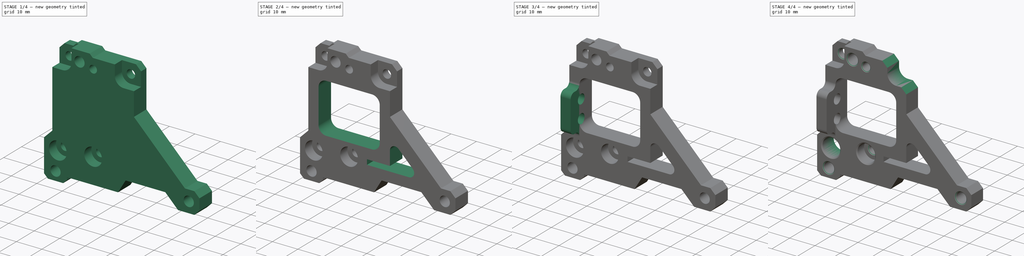
[diagram: build sequence overview — one tinted view per stage of 4, left to right]
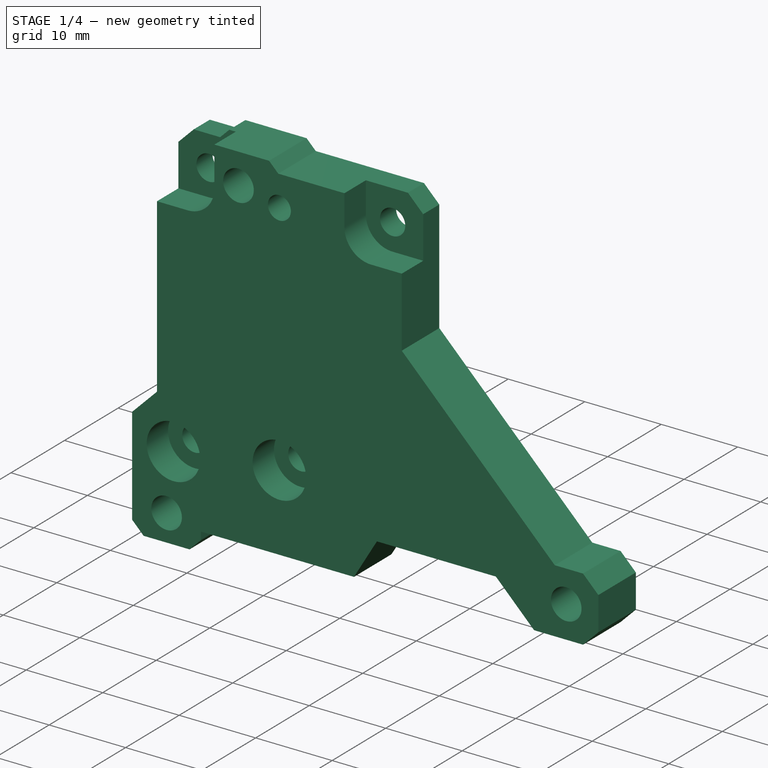
[diagram: stage 1 of 4 — iso view after this stage's code; geometry added in this stage tinted green]
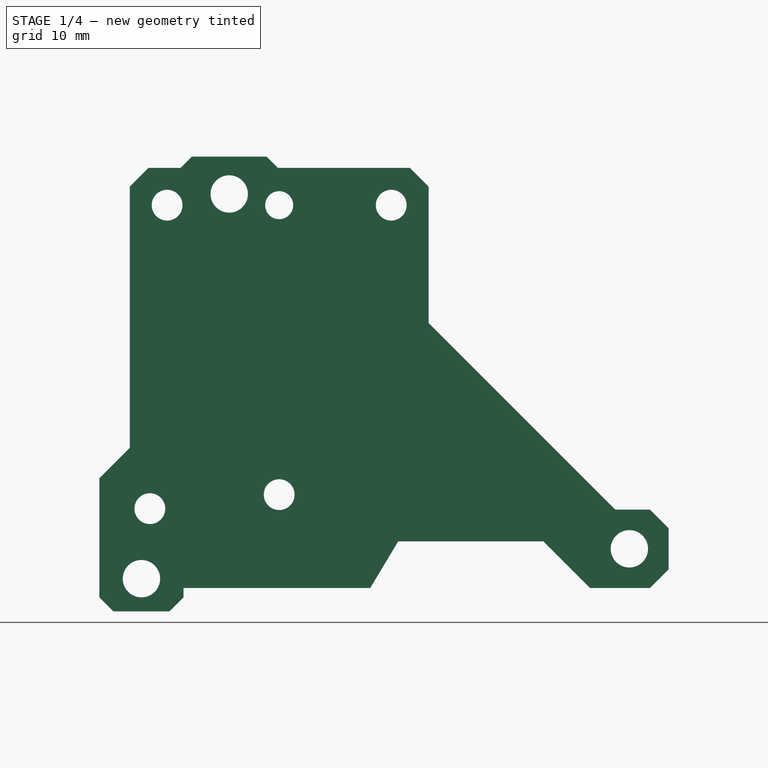
[diagram: stage 1 of 4 — front view after this stage's code; geometry added in this stage tinted green]
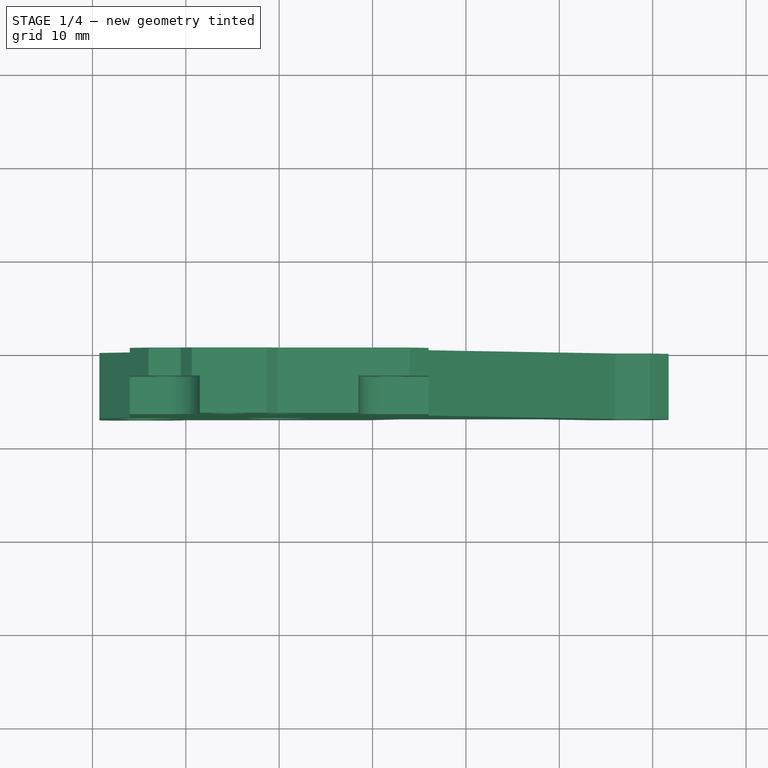
[diagram: stage 1 of 4 — top view after this stage's code; geometry added in this stage tinted green]
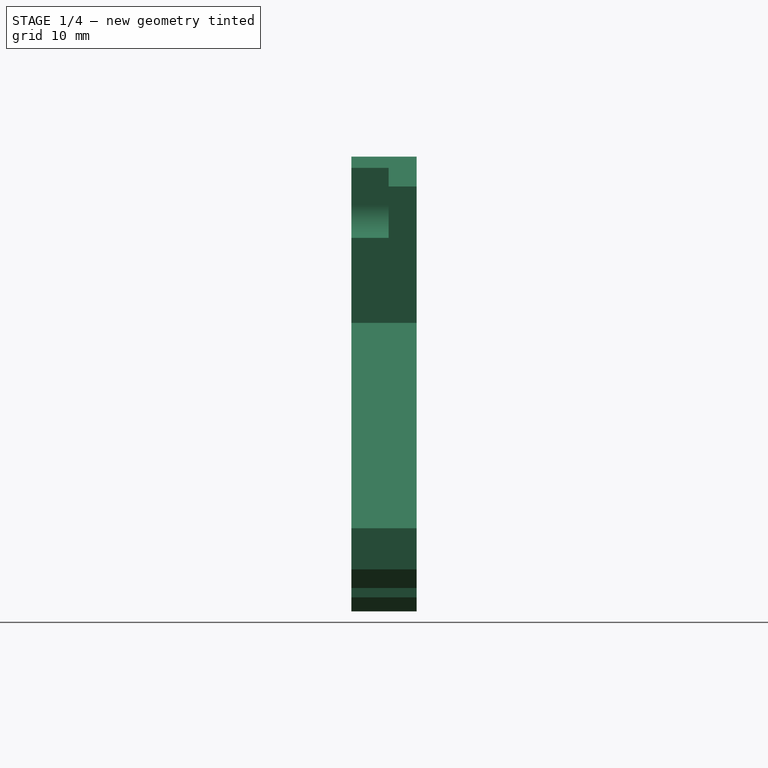
[diagram: stage 1 of 4 — right view after this stage's code; geometry added in this stage tinted green]
FCSTD DOCUMENT  (FreeCAD 0.19R24366 (Git))
Label: mounter-plate
License: All rights reserved
LicenseURL: http://en.wikipedia.org/wiki/All_rights_reserved
objects: Sketcher::SketchObject×5, PartDesign::Pocket×5, PartDesign::Chamfer×4, PartDesign::Fillet×3, PartDesign::Pad×2, PartDesign::Body×1
note: 34 computed .brp shape members not serialized (recipe doc carries the construction recipe); baked Part::Feature solids carry a one-line shape summary decoded from their .brp

FEATURE [Sketcher::SketchObject] Sketch031
  FullyConstrained = true
  MapMode = 5
  Placement = pos=(0,0,0) rot=(1,0,0;1.5708rad)
  Support = -> [XZ_Plane018]
  sketch-geometry (29):
    g0: Circle CenterX=-14.75 CenterY=-4 CenterZ=0 NormalX=0 NormalY=0 NormalZ=1 AngleXU=0 Radius=2
    g1: Circle CenterX=-5.35 CenterY=37.2 CenterZ=0 NormalX=0 NormalY=0 NormalZ=1 AngleXU=0 Radius=2
    g2: Circle CenterX=37.5 CenterY=-0.8 CenterZ=0 NormalX=0 NormalY=0 NormalZ=1 AngleXU=0 Radius=2
    g3: Circle CenterX=0 CenterY=5 CenterZ=0 NormalX=0 NormalY=0 NormalZ=1 AngleXU=0 Radius=1.65
    g4: Circle CenterX=-12 CenterY=36 CenterZ=0 NormalX=0 NormalY=0 NormalZ=1 AngleXU=0 Radius=1.65
    g5: Circle CenterX=12 CenterY=36 CenterZ=0 NormalX=0 NormalY=0 NormalZ=1 AngleXU=0 Radius=1.65
    g6: LineSegment StartX=-19.25 StartY=0 StartZ=0 EndX=-19.25 EndY=-6 EndZ=0
    g7: LineSegment StartX=-19.25 StartY=-6 StartZ=0 EndX=-17.75 EndY=-7.5 EndZ=0
    g8: LineSegment StartX=-17.75 StartY=-7.5 StartZ=0 EndX=-11.75 EndY=-7.5 EndZ=0
    g9: LineSegment StartX=-11.75 StartY=-7.5 StartZ=0 EndX=-10.25 EndY=-6 EndZ=0
    g10: LineSegment StartX=-10.25 StartY=-6 StartZ=0 EndX=-10.25 EndY=-5 EndZ=0
    g11: LineSegment StartX=-10.25 StartY=-5 StartZ=0 EndX=9.75 EndY=-5 EndZ=0
    g12: LineSegment StartX=9.75 StartY=-5 StartZ=0 EndX=12.75 EndY=0 EndZ=0
    g13: LineSegment StartX=-16 StartY=10 StartZ=0 EndX=-16 EndY=40 EndZ=0
    g14: LineSegment StartX=-16 StartY=40 StartZ=0 EndX=-10.55 EndY=40 EndZ=0
    g15: LineSegment StartX=-10.55 StartY=40 StartZ=0 EndX=-9.35 EndY=41.2 EndZ=0
    g16: LineSegment StartX=-9.35 StartY=41.2 StartZ=0 EndX=-1.35 EndY=41.2 EndZ=0
    g17: LineSegment StartX=-1.35 StartY=41.2 StartZ=0 EndX=-0.15 EndY=40 EndZ=0
    g18: LineSegment StartX=-0.15 StartY=40 StartZ=0 EndX=16 EndY=40 EndZ=0
    g19: LineSegment StartX=16 StartY=40 StartZ=0 EndX=16 EndY=3.4 EndZ=0
    g20: LineSegment StartX=16 StartY=3.4 StartZ=0 EndX=41.7 EndY=3.4 EndZ=0
    g21: LineSegment StartX=41.7 StartY=3.4 StartZ=0 EndX=41.7 EndY=-5 EndZ=0
    g22: LineSegment StartX=41.7 StartY=-5 StartZ=0 EndX=33.3 EndY=-5 EndZ=0
    g23: LineSegment StartX=33.3 StartY=-5 StartZ=0 EndX=28.3 EndY=0 EndZ=0
    g24: LineSegment StartX=28.3 StartY=0 StartZ=0 EndX=12.75 EndY=0 EndZ=0
    g25: Circle CenterX=0 CenterY=36 CenterZ=0 NormalX=0 NormalY=0 NormalZ=1 AngleXU=0 Radius=1.5
    g26: LineSegment StartX=-19.25 StartY=0 StartZ=0 EndX=-19.25 EndY=6.75 EndZ=0
    g27: LineSegment StartX=-19.25 StartY=6.75 StartZ=0 EndX=-16 EndY=10 EndZ=0
    g28: Circle CenterX=-13.85 CenterY=3.5 CenterZ=0 NormalX=0 NormalY=0 NormalZ=1 AngleXU=0 Radius=1.65
  constraints (87):
    c: Equal(g0,g2)
    c: Equal(g2,g1)
    c: Radius(g1) = 2
    c: DistanceX(g1,g-1) = 5.35
    c: DistanceX(g0,g-1) = 14.75
    c: DistanceX(g-1,g2) = 37.5
    c: DistanceY(g-1,g1) = 37.2
    c: DistanceY(g0,g-1) = 4
    c: DistanceY(g2,g-1) = 0.8
    c: PointOnObject(g3,g-2)
    c: Horizontal(g5,g4)
    c: Equal(g4,g5)
    c: Equal(g5,g3)
    c: DistanceY(g-1,g3) = 5
    c: DistanceY(g-1,g4) = 36
    c: DistanceX(g4,g-1) = 12
    c: DistanceX(g-1,g5) = 12
    c: Radius(g4) = 1.65
    c: PointOnObject(g6,g-1)
    c: Vertical(g6)
    c: Coincident(g6,g7)
    c: Coincident(g7,g8)
    c: Horizontal(g8)
    c: Coincident(g8,g9)
    c: Coincident(g9,g10)
    c: Vertical(g10)
    c: Coincident(g10,g11)
    c: Horizontal(g11)
    c: Coincident(g11,g12)
    c: PointOnObject(g12,g-1)
    c: DistanceX(g-1,g12) = 12.75
    c: DistanceX(g11,g12) = 3
    c: DistanceY(g11,g-1) = 5
    c: DistanceX(g6,g-1) = 19.25
    c: DistanceY(g6,g6) = 6
    c: DistanceY(g7,g6) = 1.5
    c: DistanceX(g6,g7) = 1.5
    c: DistanceX(g8,g9) = 1.5
    c: DistanceX(g8,g8) = 6
    c: Horizontal(g9,g6)
    c: Vertical(g13)
    c: Coincident(g13,g14)
    c: Horizontal(g14)
    c: Coincident(g14,g15)
    c: Coincident(g15,g16)
    c: Horizontal(g16)
    c: Coincident(g16,g17)
    c: Coincident(g17,g18)
    c: Horizontal(g18)
    c: Coincident(g18,g19)
    c: Vertical(g19)
    c: Coincident(g19,g20)
    c: Horizontal(g20)
    c: Coincident(g20,g21)
    c: Vertical(g21)
    c: Coincident(g21,g22)
    c: Horizontal(g22)
    c: Coincident(g22,g23)
    c: PointOnObject(g23,g-1)
    c: Coincident(g23,g24)
    c: Coincident(g24,g12)
    c: DistanceY(g1,g15) = 4
    c: DistanceY(g4,g13) = 4
    c: Horizontal(g17,g14)
    c: DistanceX(g13,g4) = 4
    c: DistanceX(g5,g18) = 4
    c: DistanceX(g15,g1) = 4
    c: DistanceX(g1,g16) = 4
    c: DistanceX(g14,g15) = 1.2
    c: DistanceX(g16,g17) = 1.2
    c: Horizontal(g11,g22)
    c: DistanceX(g2,g21) = 4.2
    c: DistanceY(g2,g20) = 4.2
    c: DistanceX(g22,g2) = 4.2
    c: DistanceX(g23,g22) = 5
    c: PointOnObject(g25,g-2)
    c: DistanceY(g-1,g25) = 36
    c: Radius(g25) = 1.5
    c: Coincident(g6,g26)
    c: Vertical(g26)
    c: Coincident(g26,g27)
    c: Coincident(g27,g13)
    c: DistanceY(g26,g13) = 3.25
    c: Radius(g28) = 1.65
    c: DistanceX(g28,g-1) = 13.85
    c: DistanceY(g-1,g28) = 3.5
    c: DistanceY(g28,g26) = 3.25
FEATURE [PartDesign::Pad] Pad006
  Direction = (1,1,1)
  Length = 7
  Length2 = 100
  Placement = pos=(0,0,0) rot=(1,0,0;1.5708rad)
  Profile = -> Sketch031
  Type = 0
FEATURE [PartDesign::Chamfer] Chamfer008
  Angle = 45
  Base = -> Pad006 [Edge35]
  BaseFeature = -> Pad006
  ChamferType = 0
  FlipDirection = false
  Placement = pos=(0,0,0) rot=(1,0,0;1.5708rad)
  Size = 20
  Size2 = 1
  SupportTransform = false
FEATURE [PartDesign::Chamfer] Chamfer009
  Angle = 45
  Base = -> Chamfer008 [Edge75,Edge65,Edge3,Edge36]
  BaseFeature = -> Chamfer008
  ChamferType = 0
  FlipDirection = false
  Placement = pos=(0,0,0) rot=(1,0,0;1.5708rad)
  Size = 2
  Size2 = 1
  SupportTransform = false
FEATURE [Sketcher::SketchObject] Sketch036
  ExternalGeometry = -> [Chamfer009]
  FullyConstrained = true
  MapMode = 5
  Placement = pos=(0,-7,1.5e-15) rot=(1,0,0;1.5708rad)
  Support = -> [Chamfer009]
  sketch-geometry (12):
    g0: Circle CenterX=-13.85 CenterY=3.5 CenterZ=0 NormalX=0 NormalY=0 NormalZ=1 AngleXU=0 Radius=3.5
    g1: Circle CenterX=0 CenterY=5 CenterZ=0 NormalX=0 NormalY=0 NormalZ=1 AngleXU=0 Radius=3.5
    g2: ArcOfCircle CenterX=-12 CenterY=36 CenterZ=0 NormalX=0 NormalY=0 NormalZ=1 AngleXU=0 Radius=3.5 StartAngle=4.71239 EndAngle=6.28319
    g3: ArcOfCircle CenterX=12 CenterY=36 CenterZ=0 NormalX=0 NormalY=0 NormalZ=1 AngleXU=0 Radius=3.5 StartAngle=3.14159 EndAngle=4.71239
    g4: LineSegment StartX=-8.5 StartY=36 StartZ=0 EndX=-8.5 EndY=42 EndZ=0
    g5: LineSegment StartX=-8.5 StartY=42 StartZ=0 EndX=-18 EndY=42 EndZ=0
    g6: LineSegment StartX=-18 StartY=42 StartZ=0 EndX=-18 EndY=32.5 EndZ=0
    g7: LineSegment StartX=-18 StartY=32.5 StartZ=0 EndX=-12 EndY=32.5 EndZ=0
    g8: LineSegment StartX=12 StartY=32.5 StartZ=0 EndX=18 EndY=32.5 EndZ=0
    g9: LineSegment StartX=18 StartY=32.5 StartZ=0 EndX=18 EndY=42 EndZ=0
    g10: LineSegment StartX=18 StartY=42 StartZ=0 EndX=8.5 EndY=42 EndZ=0
    g11: LineSegment StartX=8.5 StartY=42 StartZ=0 EndX=8.5 EndY=36 EndZ=0
  constraints (32):
    c: Coincident(g0,g-3)
    c: Coincident(g1,g-4)
    c: Coincident(g2,g-5)
    c: Coincident(g3,g-6)
    c: Horizontal(g2,g2)
    c: Horizontal(g2,g3)
    c: Vertical(g2,g2)
    c: Vertical(g3,g3)
    c: Equal(g3,g2)
    c: Equal(g2,g1)
    c: Equal(g1,g0)
    c: Radius(g1) = 3.5
    c: Tangent(g2,g4) = -1.5708
    c: Coincident(g4,g5)
    c: Horizontal(g5)
    c: Coincident(g5,g6)
    c: Vertical(g6)
    c: Coincident(g6,g7)
    c: Coincident(g7,g2)
    c: Horizontal(g7)
    c: Tangent(g3,g8) = -1.5708
    c: Coincident(g8,g9)
    c: Vertical(g9)
    c: Coincident(g9,g10)
    c: Horizontal(g10)
    c: Coincident(g10,g11)
    c: Coincident(g11,g3)
    c: Vertical(g11)
    c: Horizontal(g10,g4)
    c: DistanceY(g4,g4) = 6
    c: DistanceX(g7,g7) = 6
    c: DistanceX(g8,g8) = 6
FEATURE [PartDesign::Pocket] Pocket022
  BaseFeature = -> Chamfer009
  Length = 4
  Length2 = 100
  Placement = pos=(0,0,0) rot=(1,0,0;1.5708rad)
  Profile = -> Sketch036
  Type = 0
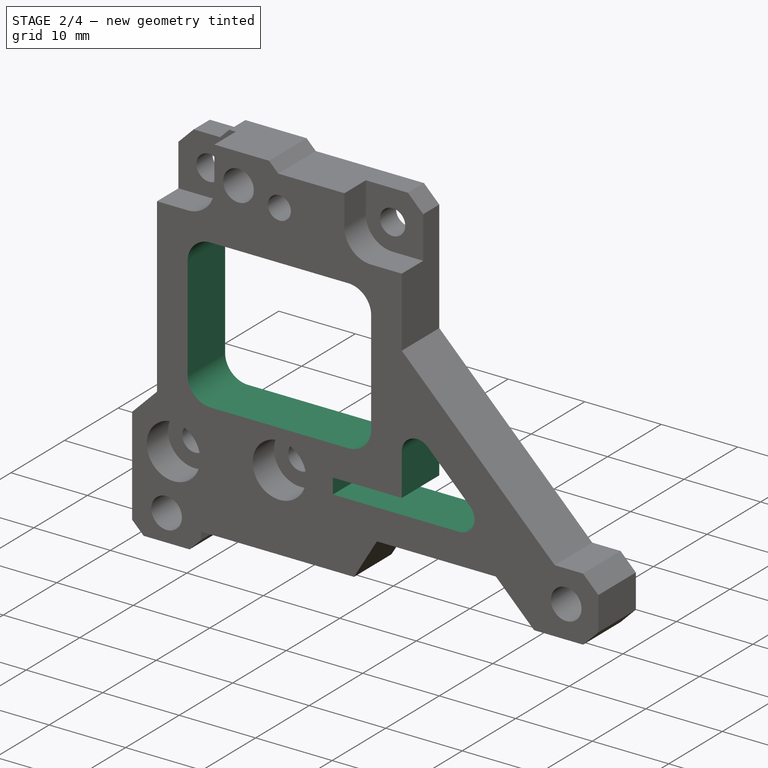
[diagram: stage 2 of 4 — iso view after this stage's code; geometry added in this stage tinted green]
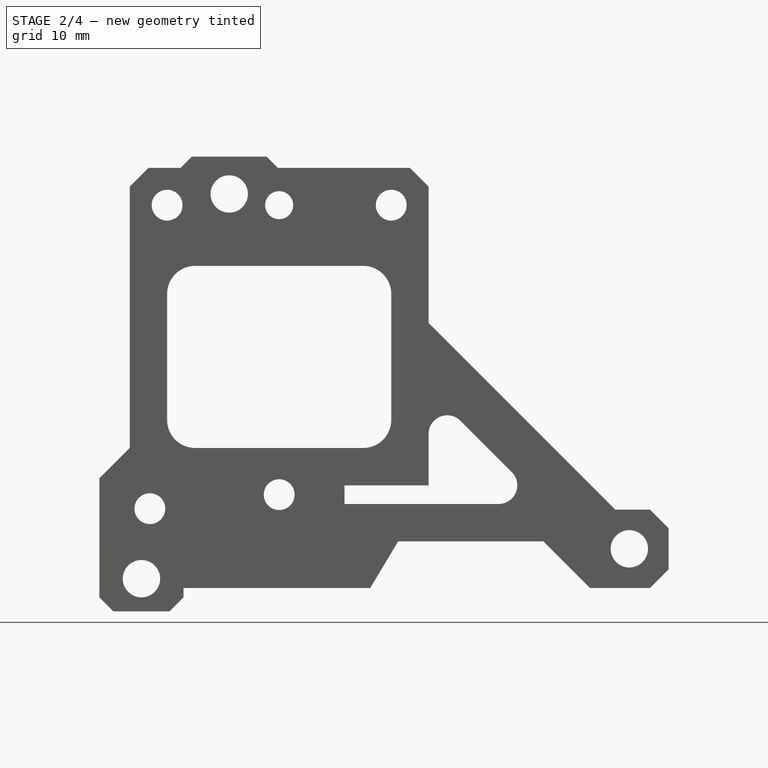
[diagram: stage 2 of 4 — front view after this stage's code; geometry added in this stage tinted green]
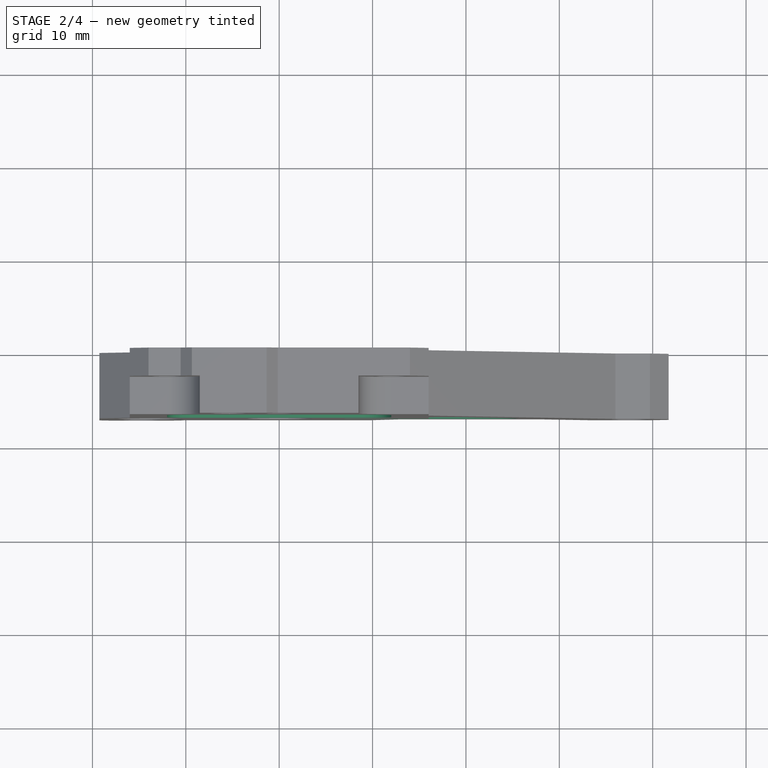
[diagram: stage 2 of 4 — top view after this stage's code; geometry added in this stage tinted green]
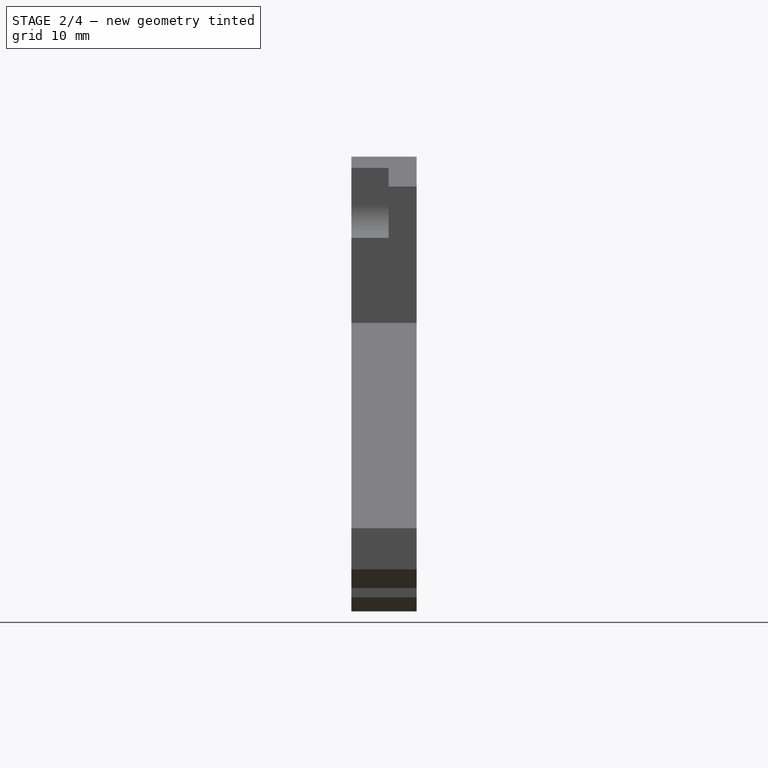
[diagram: stage 2 of 4 — right view after this stage's code; geometry added in this stage tinted green]
FEATURE [Sketcher::SketchObject] Sketch037
  ExternalGeometry = -> [Pocket022]
  FullyConstrained = true
  MapMode = 5
  Placement = pos=(0,-7,1.5e-15) rot=(1,0,0;1.5708rad)
  Support = -> [Pocket022]
  sketch-geometry (10):
    g0: LineSegment StartX=-12 StartY=29.5 StartZ=0 EndX=12 EndY=29.5 EndZ=0
    g1: LineSegment StartX=12 StartY=29.5 StartZ=0 EndX=12 EndY=10 EndZ=0
    g2: LineSegment StartX=12 StartY=10 StartZ=0 EndX=-12 EndY=10 EndZ=0
    g3: LineSegment StartX=-12 StartY=10 StartZ=0 EndX=-12 EndY=29.5 EndZ=0
    g4: LineSegment StartX=7 StartY=6 StartZ=0 EndX=16 EndY=6 EndZ=0
    g5: LineSegment StartX=16 StartY=6 StartZ=0 EndX=16 EndY=16.3289 EndZ=0
    g6: LineSegment StartX=16 StartY=16.3289 StartZ=0 EndX=28.3289 EndY=4 EndZ=0
    g7: LineSegment StartX=28.3289 StartY=4 StartZ=0 EndX=7 EndY=4 EndZ=0
    g8: LineSegment StartX=7 StartY=4 StartZ=0 EndX=7 EndY=6 EndZ=0
    g9: LineSegment StartX=28.3289 StartY=4 StartZ=0 EndX=31.8645 EndY=7.53553 EndZ=0
  constraints (30):
    c: Coincident(g0,g1)
    c: Coincident(g1,g2)
    c: Coincident(g2,g3)
    c: Coincident(g3,g0)
    c: Horizontal(g0)
    c: Horizontal(g2)
    c: Vertical(g1)
    c: Vertical(g3)
    c: DistanceX(g-4,g2) = 4
    c: DistanceX(g0,g-5) = 4
    c: DistanceY(g0,g-5) = 3
    c: Horizontal(g-4,g2)
    c: Horizontal(g4)
    c: Coincident(g4,g5)
    c: Vertical(g5)
    c: Coincident(g5,g6)
    c: Coincident(g6,g7)
    c: Horizontal(g7)
    c: Coincident(g7,g8)
    c: Coincident(g8,g4)
    c: Vertical(g8)
    c: Parallel(g-6,g6)
    c: Vertical(g5,g-6)
    c: Coincident(g9,g6)
    c: PointOnObject(g9,g-6)
    c: Perpendicular(g-6,g9)
    c: Distance(g9) = 5
    c: DistanceY(g4,g1) = 4
    c: DistanceY(g-1,g7) = 4
    c: DistanceX(g-1,g7) = 7
FEATURE [PartDesign::Pocket] Pocket023
  BaseFeature = -> Pocket022
  Length = 5
  Length2 = 100
  Placement = pos=(0,0,0) rot=(1,0,0;1.5708rad)
  Profile = -> Sketch037
  Type = 1
FEATURE [PartDesign::Fillet] Fillet001
  Base = -> Pocket023 [Edge130,Edge129,Edge132,Edge131]
  BaseFeature = -> Pocket023
  Placement = pos=(0,0,0) rot=(1,0,0;1.5708rad)
  Radius = 3
  SupportTransform = false
FEATURE [PartDesign::Fillet] Fillet002
  Base = -> Fillet001 [Edge144,Edge142]
  BaseFeature = -> Fillet001
  Placement = pos=(0,0,0) rot=(1,0,0;1.5708rad)
  Radius = 2
  SupportTransform = false
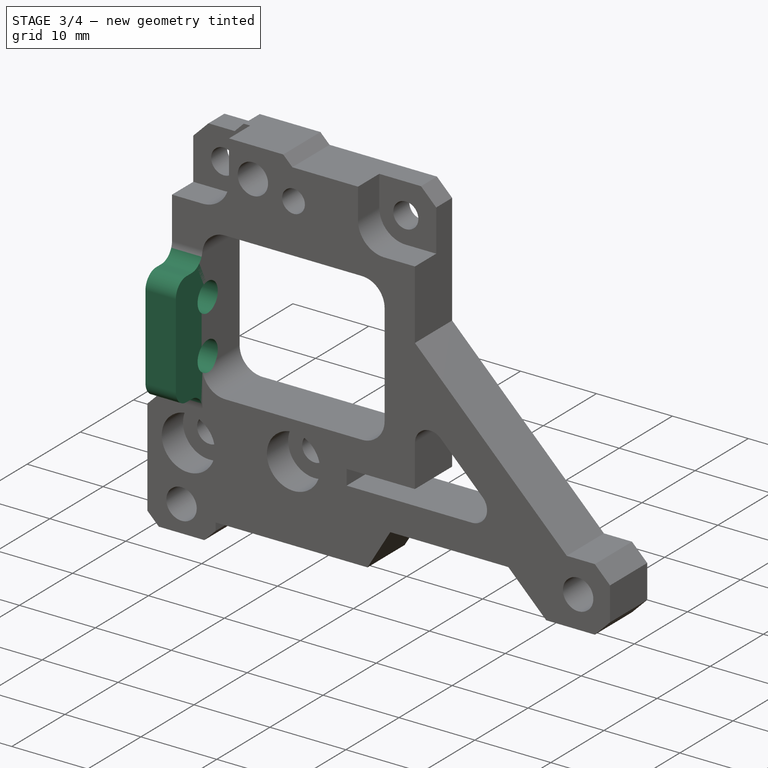
[diagram: stage 3 of 4 — iso view after this stage's code; geometry added in this stage tinted green]
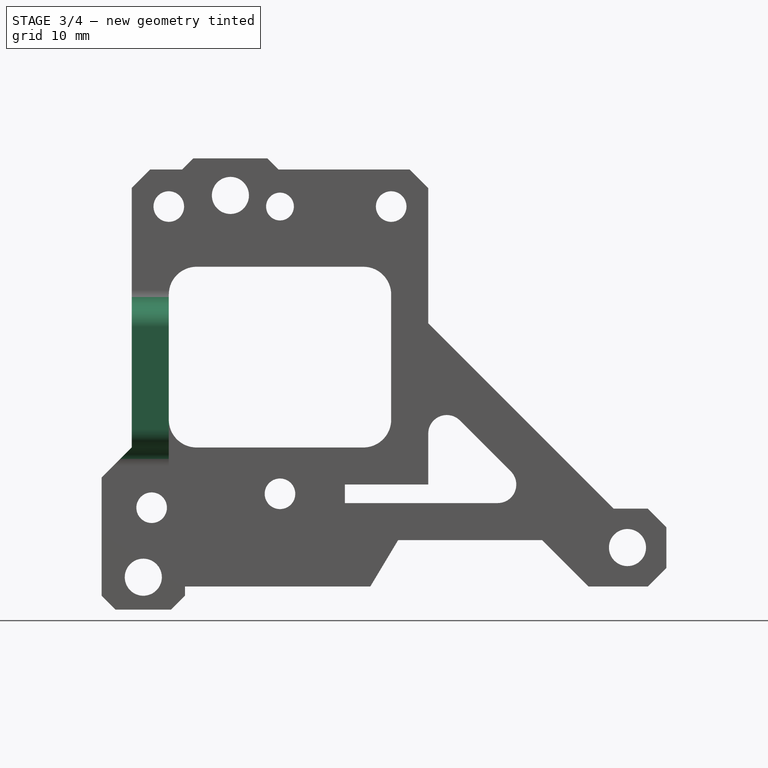
[diagram: stage 3 of 4 — front view after this stage's code; geometry added in this stage tinted green]
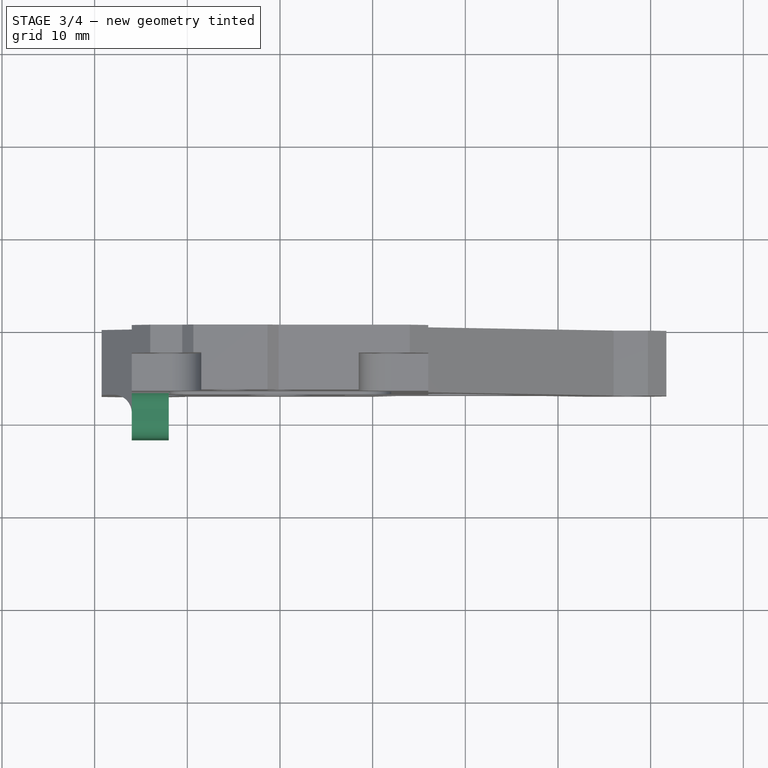
[diagram: stage 3 of 4 — top view after this stage's code; geometry added in this stage tinted green]
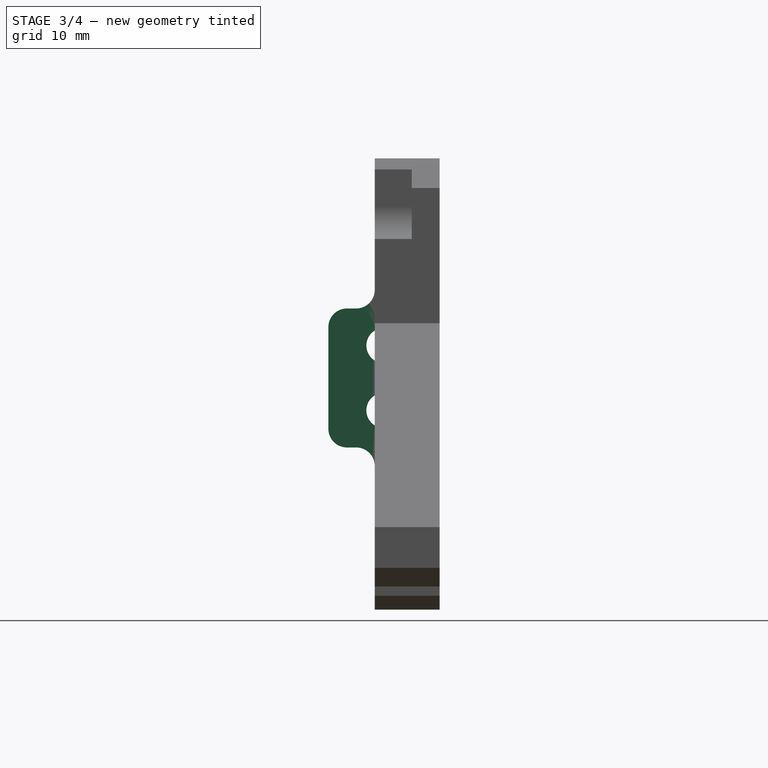
[diagram: stage 3 of 4 — right view after this stage's code; geometry added in this stage tinted green]
FEATURE [Sketcher::SketchObject] Sketch039
  ExternalGeometry = -> [Fillet002]
  FullyConstrained = true
  MapMode = 5
  Placement = pos=(0,-7,1.5e-15) rot=(1,0,0;1.5708rad)
  Support = -> [Fillet002]
  sketch-geometry (4):
    g0: LineSegment StartX=-16 StartY=10 StartZ=0 EndX=-12 EndY=10 EndZ=0
    g1: LineSegment StartX=-12 StartY=10 StartZ=0 EndX=-12 EndY=25 EndZ=0
    g2: LineSegment StartX=-12 StartY=25 StartZ=0 EndX=-16 EndY=25 EndZ=0
    g3: LineSegment StartX=-16 StartY=25 StartZ=0 EndX=-16 EndY=10 EndZ=0
  constraints (11):
    c: Coincident(g0,g1)
    c: Coincident(g1,g2)
    c: Coincident(g2,g3)
    c: Coincident(g3,g0)
    c: Horizontal(g0)
    c: Horizontal(g2)
    c: Vertical(g1)
    c: Vertical(g3)
    c: Coincident(g0,g-3)
    c: PointOnObject(g1,g-4)
    c: DistanceY(g3,g3) = 15
FEATURE [PartDesign::Pad] Pad007
  BaseFeature = -> Fillet002
  Direction = (1,1,1)
  Length = 5
  Length2 = 100
  Placement = pos=(0,0,0) rot=(1,0,0;1.5708rad)
  Profile = -> Sketch039
  Type = 0
FEATURE [PartDesign::Fillet] Fillet003
  Base = -> Pad007 [Edge165,Edge158,Edge187,Edge188]
  BaseFeature = -> Pad007
  Placement = pos=(0,0,0) rot=(1,0,0;1.5708rad)
  Radius = 2
  Refine = true
  SupportTransform = false
FEATURE [Sketcher::SketchObject] Sketch040
  FullyConstrained = true
  MapMode = 5
  Placement = pos=(-16,6.6e-15,2e-16) rot=(-0.707107,0,0.707107;3.14159rad)
  Support = -> [Fillet003]
  sketch-geometry (2):
    g0: Circle CenterX=-21 CenterY=6 CenterZ=0 NormalX=0 NormalY=0 NormalZ=1 AngleXU=0 Radius=1.9
    g1: Circle CenterX=-14 CenterY=6 CenterZ=0 NormalX=0 NormalY=0 NormalZ=1 AngleXU=0 Radius=1.9
  constraints (6):
    c: Horizontal(g1,g0)
    c: Equal(g0,g1)
    c: Radius(g1) = 1.9
    c: DistanceX(g0,g1) = 7
    c: DistanceX(g1,g-1) = 14
    c: DistanceY(g-1,g1) = 6
FEATURE [PartDesign::Pocket] Pocket025
  BaseFeature = -> Fillet003
  Length = 10
  Length2 = 100
  Placement = pos=(0,0,0) rot=(1,0,0;1.5708rad)
  Profile = -> Sketch040
  Type = 0
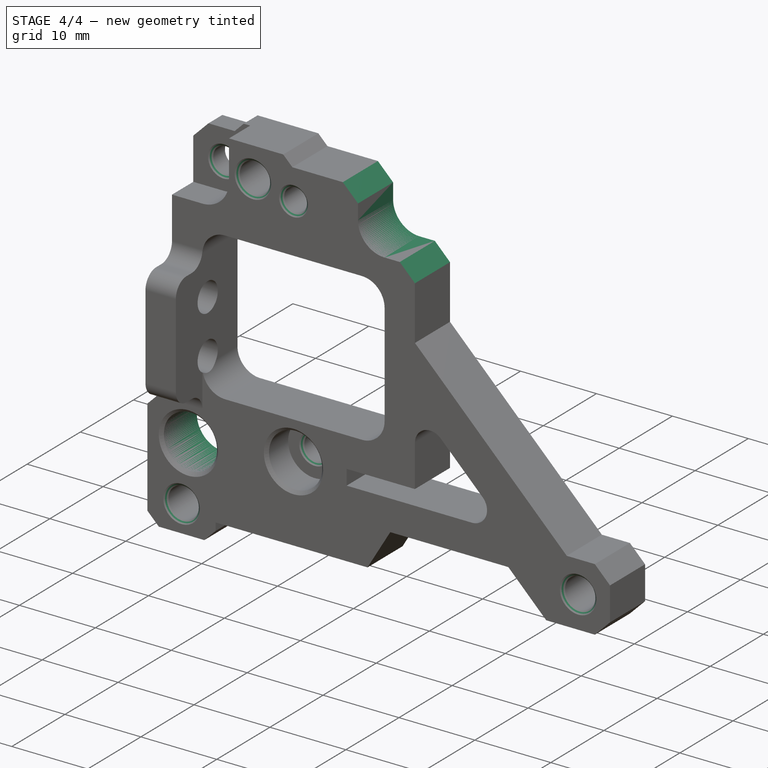
[diagram: stage 4 of 4 — iso view after this stage's code; geometry added in this stage tinted green]
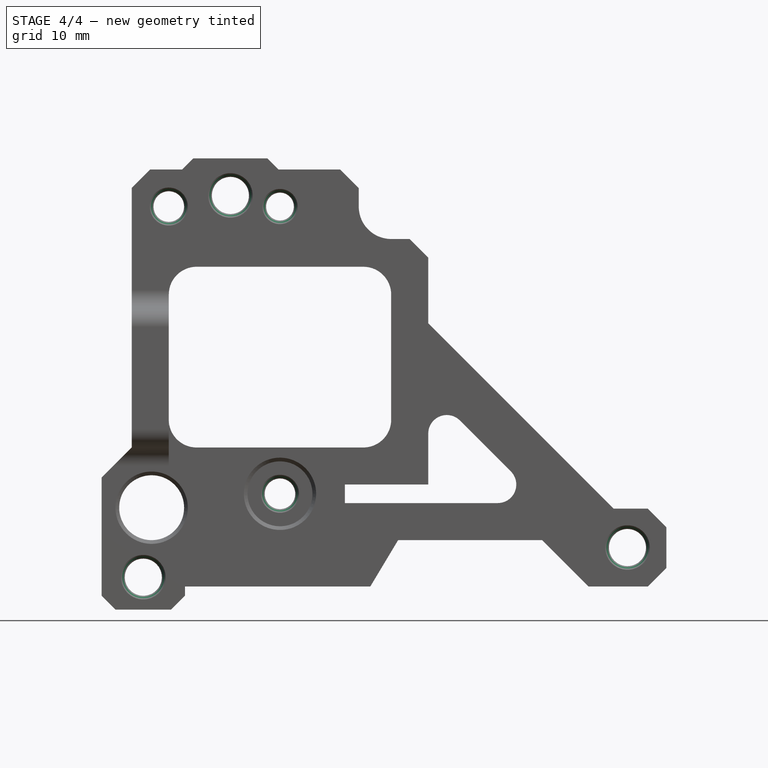
[diagram: stage 4 of 4 — front view after this stage's code; geometry added in this stage tinted green]
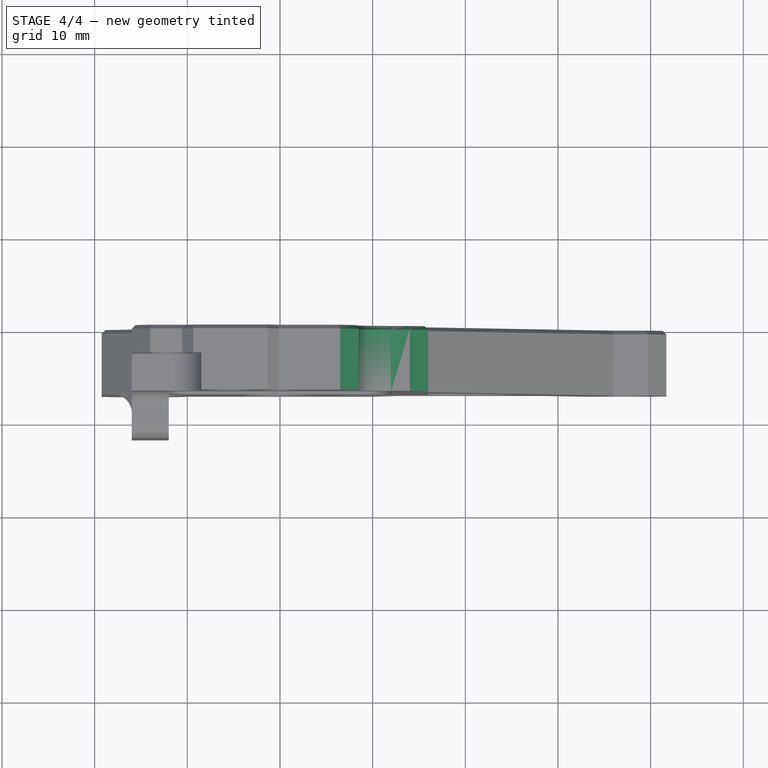
[diagram: stage 4 of 4 — top view after this stage's code; geometry added in this stage tinted green]
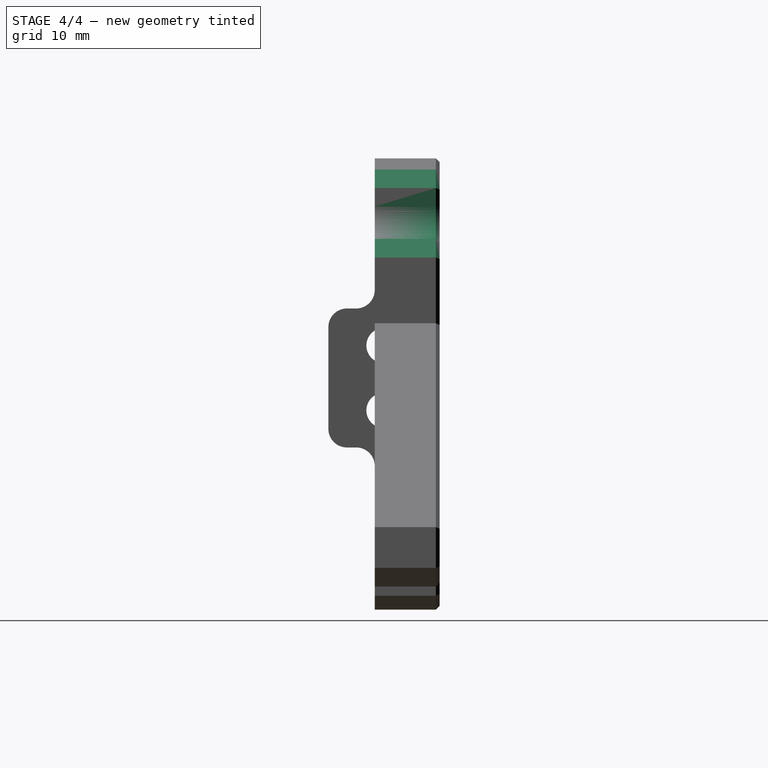
[diagram: stage 4 of 4 — right view after this stage's code; geometry added in this stage tinted green]
FEATURE [PartDesign::Pocket] Pocket026
  BaseFeature = -> Pocket025
  Length = 5
  Length2 = 100
  Placement = pos=(0,0,0) rot=(1,0,0;1.5708rad)
  Profile = -> Pocket025 [Face70]
  Type = 0
FEATURE [PartDesign::Pocket] Pocket027
  BaseFeature = -> Pocket026
  Length = 5
  Length2 = 100
  Placement = pos=(0,0,0) rot=(1,0,0;1.5708rad)
  Profile = -> Pocket026 [Face69]
  Refine = true
  Type = 1
FEATURE [PartDesign::Chamfer] Chamfer012
  Angle = 45
  Base = -> Pocket027 [Edge141,Edge143]
  BaseFeature = -> Pocket027
  ChamferType = 0
  FlipDirection = false
  Placement = pos=(0,0,0) rot=(1,0,0;1.5708rad)
  Size = 2
  Size2 = 1
  SupportTransform = false
FEATURE [PartDesign::Chamfer] Chamfer013
  Angle = 45
  Base = -> Chamfer012 [Face1,Edge89,Edge90,Edge158,Edge160,Edge185,Edge162,Edge178,Edge126,Edge128,Edge124]
  BaseFeature = -> Chamfer012
  ChamferType = 0
  FlipDirection = false
  Placement = pos=(0,0,0) rot=(1,0,0;1.5708rad)
  Size = 0.4
  Size2 = 1
  SupportTransform = false
FEATURE [PartDesign::Body] Body002002002002005  label="fan-mounter"
  Group = -> [Sketch031,Pad006,Chamfer008,Chamfer009,Sketch036,Pocket022,Sketch037,Pocket023,Fillet001,Fillet002,Sketch039,Pad007,Fillet003,Sketch040,Pocket025,Pocket026,Pocket027,Chamfer012,Chamfer013]
  Origin = -> Origin018
  Placement = pos=(16.5,-32,0) rot=(0,0,1;0rad)
  Tip = -> Chamfer013
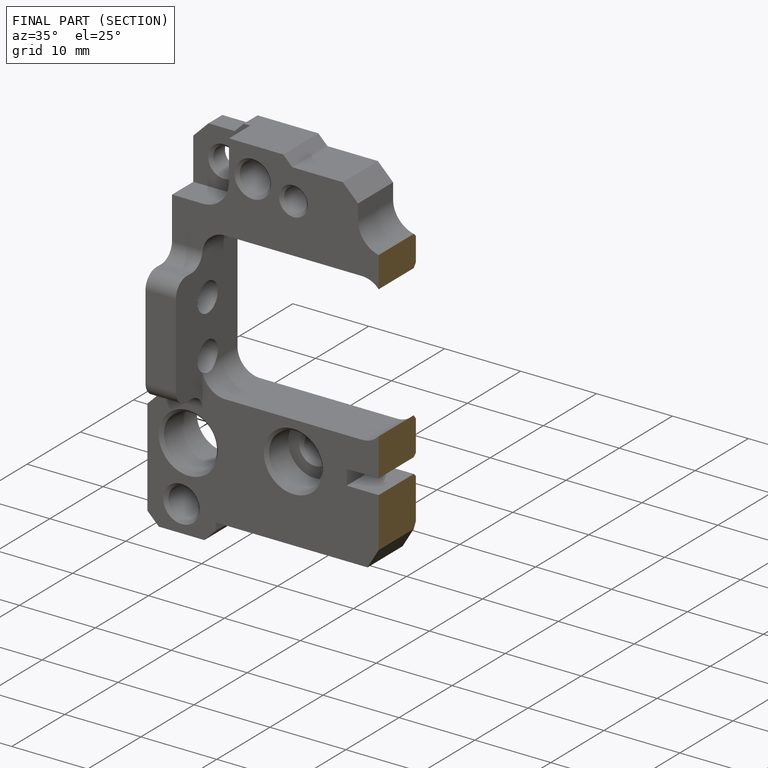
[diagram: finished part — half-section view (interior)]
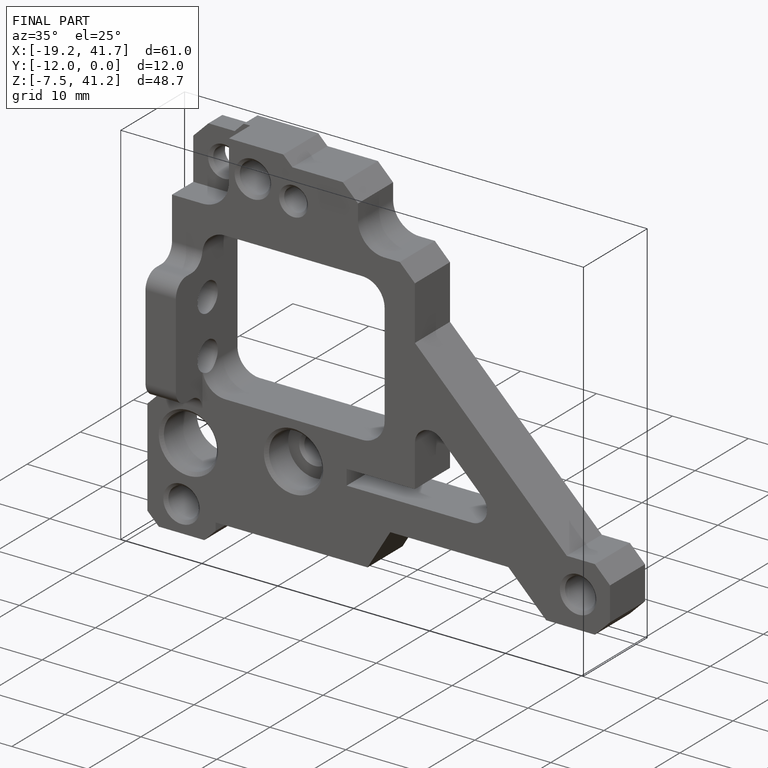
[diagram: finished part — iso view with bounding-box wireframe]
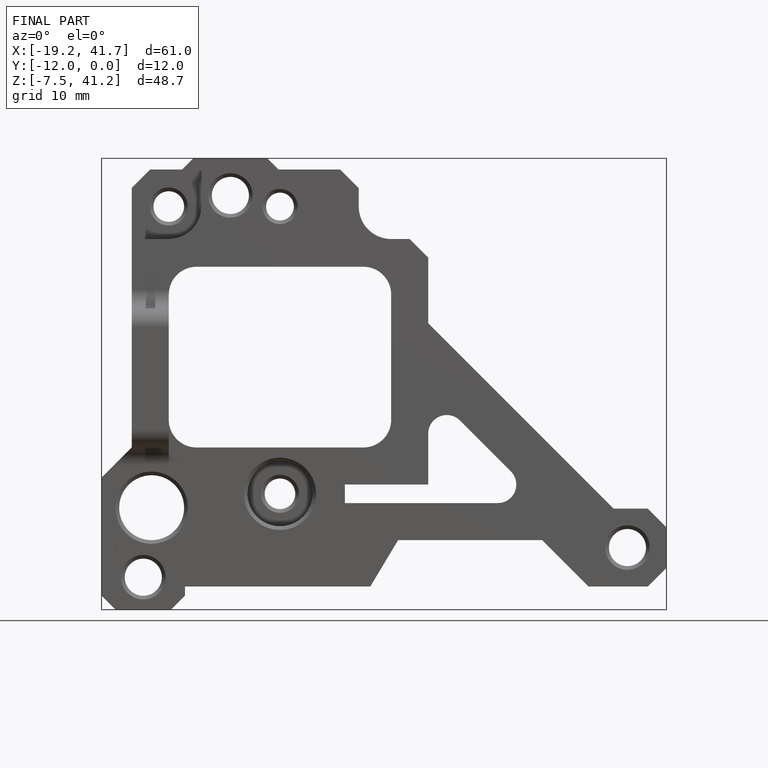
[diagram: finished part — front view with bounding-box wireframe]
